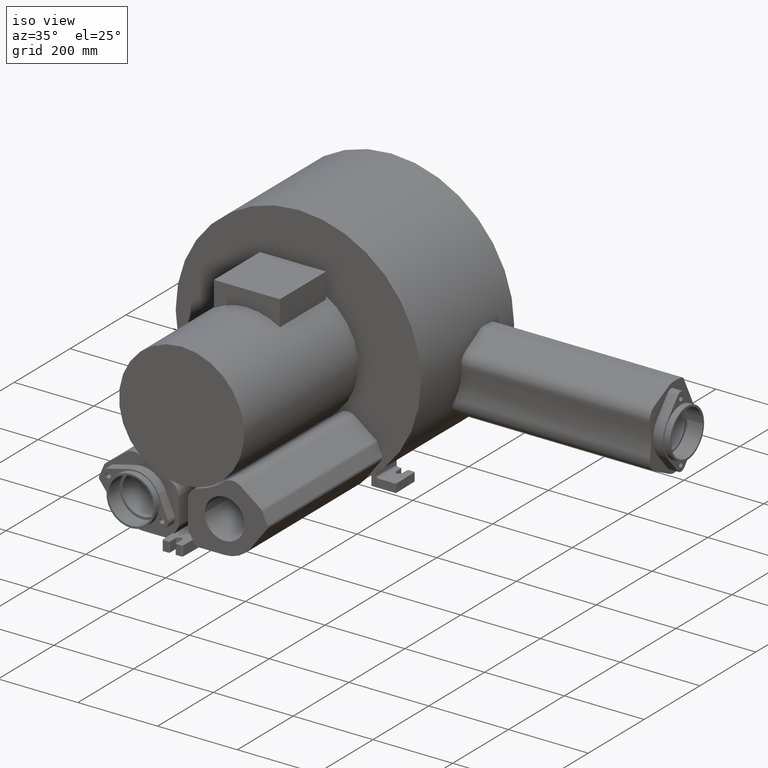
[diagram: clean part render]
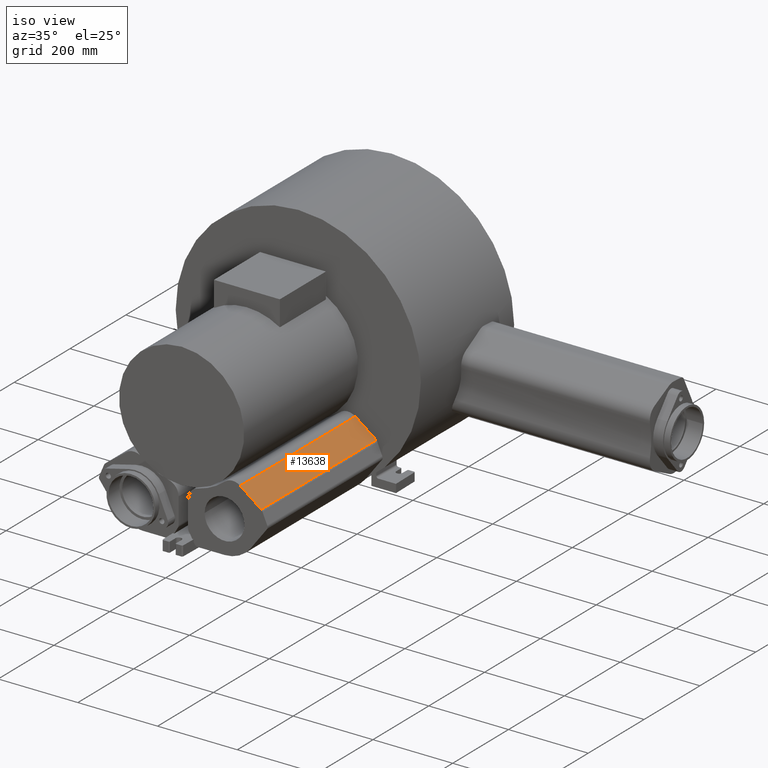
[diagram: same view with one face highlighted and labeled with its STEP entity id]
A machine part, iso view. The second image highlights one B-rep face of the part: STEP entity #13638.
In plain terms, the highlighted planar face has unit normal (-0.6018, -0, -0.7986).
Its self-contained STEP definition (entity closure, byte-faithful):
#1275=FACE_OUTER_BOUND('',#2048,.T.);
#2048=EDGE_LOOP('',(#9352,#9353,#9354,#9355));
#2968=LINE('',#19051,#4237);
#2982=LINE('',#19098,#4251);
#2983=LINE('',#19101,#4252);
#2984=LINE('',#19102,#4253);
#4237=VECTOR('',#15653,65.4747307687757);
#4251=VECTOR('',#15701,412.);
#4252=VECTOR('',#15704,65.4747307687757);
#4253=VECTOR('',#15705,412.);
#5533=VERTEX_POINT('',#19048);
#5534=VERTEX_POINT('',#19050);
#5550=VERTEX_POINT('',#19096);
#5551=VERTEX_POINT('',#19100);
#6967=EDGE_CURVE('',#5534,#5533,#2968,.T.);
#6991=EDGE_CURVE('',#5550,#5533,#2982,.T.);
#6992=EDGE_CURVE('',#5551,#5550,#2983,.T.);
#6993=EDGE_CURVE('',#5551,#5534,#2984,.T.);
#9352=ORIENTED_EDGE('',*,*,#6992,.F.);
#9353=ORIENTED_EDGE('',*,*,#6993,.T.);
#9354=ORIENTED_EDGE('',*,*,#6967,.T.);
#9355=ORIENTED_EDGE('',*,*,#6991,.F.);
#12407=PLANE('',#14453);
#13638=ADVANCED_FACE('',(#1275),#12407,.F.);
#14453=AXIS2_PLACEMENT_3D('',#19099,#15702,#15703);
#15653=DIRECTION('',(0.798642559970522,-3.41805472339874E-15,-0.60180566747392));
#15701=DIRECTION('',(-2.7755575615627E-17,-1.,5.64283143708145E-15));
#15702=DIRECTION('center_axis',(-0.60180566747392,-4.48990188168338E-15,
-0.798642559970522));
#15703=DIRECTION('ref_axis',(0.798642559970521,-2.8421709430404E-15,-0.601805667473922));
#15704=DIRECTION('',(0.798642559970522,-3.41805472339874E-15,-0.60180566747392));
#15705=DIRECTION('',(-2.7755575615627E-17,-1.,5.64283143708145E-15));
#19048=CARTESIAN_POINT('',(167.532220803993,-496.984342737877,-447.84367985521));
#19050=CARTESIAN_POINT('',(115.241314209438,-496.984342737877,-408.440615802231));
#19051=CARTESIAN_POINT('',(115.241314209438,-496.984342737877,-408.440615802231));
#19096=CARTESIAN_POINT('',(167.532220803993,-84.9843427378768,-447.843679855212));
#19098=CARTESIAN_POINT('',(167.532220803993,-84.9843427378768,-447.843679855212));
#19099=CARTESIAN_POINT('Origin',(115.241314209438,-84.9843427378765,-408.440615802234));
#19100=CARTESIAN_POINT('',(115.241314209438,-84.9843427378765,-408.440615802234));
#19101=CARTESIAN_POINT('',(-11.9290558048764,-84.984342737876,-312.613204084789));
#19102=CARTESIAN_POINT('',(115.241314209438,-84.9843427378765,-408.440615802234));